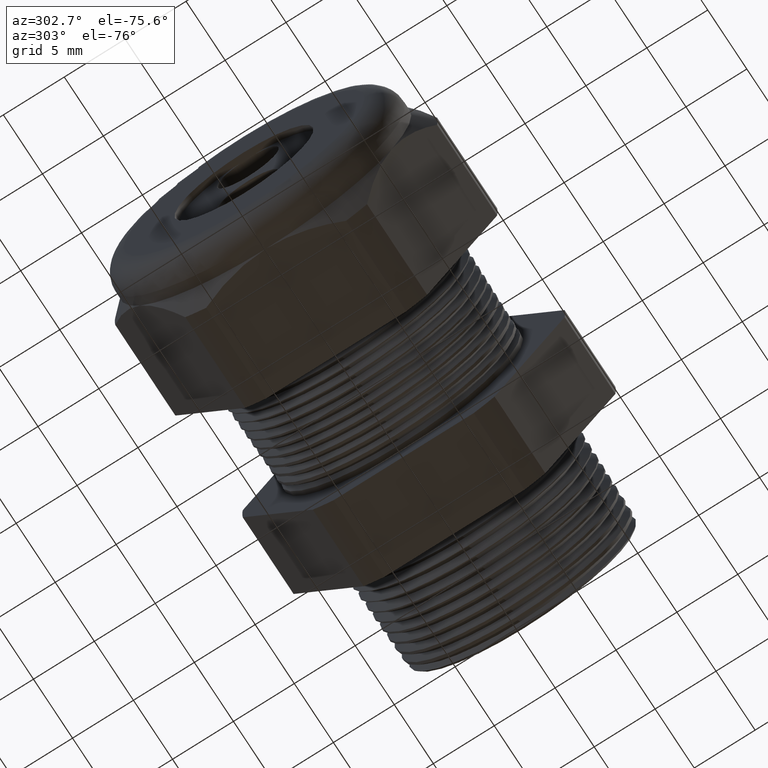
[diagram: clean part render]
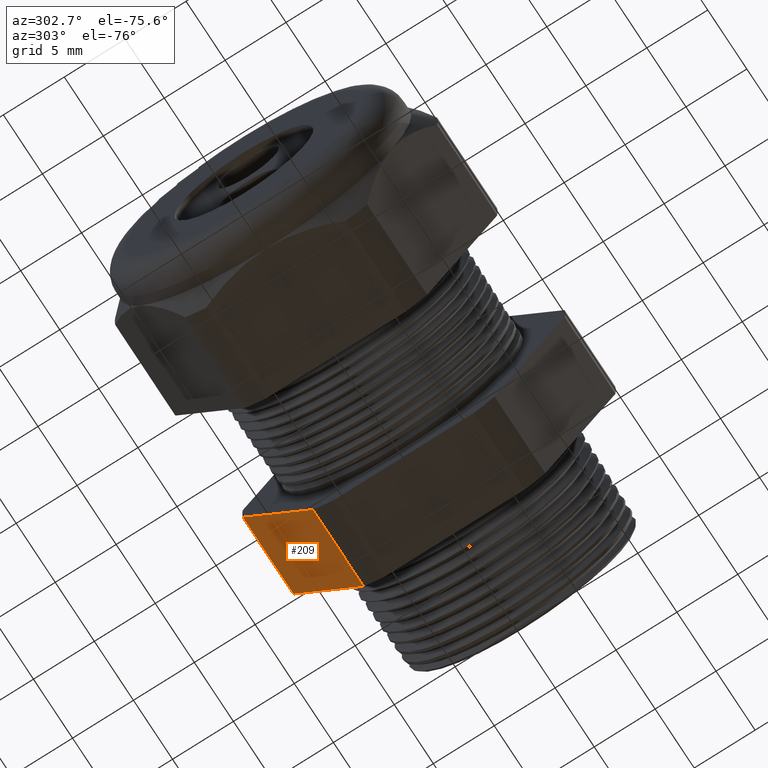
[diagram: same view with one face highlighted and labeled with its STEP entity id]
A machine part, auxiliary view. The second image highlights one B-rep face of the part: STEP entity #209.
In plain terms, the highlighted planar face has unit normal (0, 0.866, -0.5).
Its self-contained STEP definition (entity closure, byte-faithful):
#184 = EDGE_CURVE ( 'NONE', #4844, #424, #1477, .T. ) ;
#188 = EDGE_LOOP ( 'NONE', ( #189, #194, #190, #191 ) ) ;
#189 = ORIENTED_EDGE ( 'NONE', *, *, #184, .T. ) ;
#190 = ORIENTED_EDGE ( 'NONE', *, *, #308, .F. ) ;
#191 = ORIENTED_EDGE ( 'NONE', *, *, #4846, .F. ) ;
#194 = ORIENTED_EDGE ( 'NONE', *, *, #420, .F. ) ;
#209 = ADVANCED_FACE ( 'NONE', ( #1510 ), #1509, .T. ) ;
#308 = EDGE_CURVE ( 'NONE', #4845, #415, #1641, .T. ) ;
#415 = VERTEX_POINT ( 'NONE', #1848 ) ;
#420 = EDGE_CURVE ( 'NONE', #415, #424, #1841, .T. ) ;
#424 = VERTEX_POINT ( 'NONE', #1832 ) ;
#1474 = DIRECTION ( 'NONE',  ( -1.000000000000000000, 0.0000000000000000000, 0.0000000000000000000 ) ) ;
#1475 = VECTOR ( 'NONE', #1474, 39.37007874015748100 ) ;
#1476 = CARTESIAN_POINT ( 'NONE',  ( 0.03999999999999984800, 0.2938165587564948700, -0.4310947921287048800 ) ) ;
#1477 = LINE ( 'NONE', #1476, #1475 ) ;
#1505 = DIRECTION ( 'NONE',  ( 0.0000000000000000000, 0.4999999999999998300, 0.8660254037844388200 ) ) ;
#1506 = DIRECTION ( 'NONE',  ( 0.0000000000000000000, 0.8660254037844388200, -0.4999999999999998300 ) ) ;
#1507 = CARTESIAN_POINT ( 'NONE',  ( 0.03999999999999984800, 0.5202473208008777700, -0.03890520787129496400 ) ) ;
#1508 = AXIS2_PLACEMENT_3D ( 'NONE', #1507, #1506, #1505 ) ;
#1509 = PLANE ( 'NONE',  #1508 ) ;
#1510 = FACE_OUTER_BOUND ( 'NONE', #188, .T. ) ;
#1638 = DIRECTION ( 'NONE',  ( -1.000000000000000000, 0.0000000000000000000, 0.0000000000000000000 ) ) ;
#1639 = VECTOR ( 'NONE', #1638, 39.37007874015748100 ) ;
#1640 = CARTESIAN_POINT ( 'NONE',  ( 0.03999999999999984800, 0.5202473208008777700, -0.03890520787129496400 ) ) ;
#1641 = LINE ( 'NONE', #1640, #1639 ) ;
#1832 = CARTESIAN_POINT ( 'NONE',  ( -0.5659055118110235500, 0.2938165587564948700, -0.4310947921287048300 ) ) ;
#1838 = DIRECTION ( 'NONE',  ( 0.0000000000000000000, -0.4999999999999998300, -0.8660254037844388200 ) ) ;
#1839 = VECTOR ( 'NONE', #1838, 39.37007874015748100 ) ;
#1840 = CARTESIAN_POINT ( 'NONE',  ( -0.5659055118110235500, 0.6420319397786861100, 0.1720319397786860800 ) ) ;
#1841 = LINE ( 'NONE', #1840, #1839 ) ;
#1848 = CARTESIAN_POINT ( 'NONE',  ( -0.5659055118110235500, 0.5202473208008777700, -0.03890520787129496400 ) ) ;
#4193 = DIRECTION ( 'NONE',  ( 0.0000000000000000000, 0.4999999999999998300, 0.8660254037844388200 ) ) ;
#4194 = VECTOR ( 'NONE', #4193, 39.37007874015748100 ) ;
#4195 = CARTESIAN_POINT ( 'NONE',  ( -0.3100000000000000000, 0.6420319397786861100, 0.1720319397786860800 ) ) ;
#4196 = LINE ( 'NONE', #4195, #4194 ) ;
#4197 = CARTESIAN_POINT ( 'NONE',  ( -0.3100000000000000000, 0.5202473208008777700, -0.03890520787129494300 ) ) ;
#4198 = CARTESIAN_POINT ( 'NONE',  ( -0.3100000000000000000, 0.2938165587564948700, -0.4310947921287048800 ) ) ;
#4844 = VERTEX_POINT ( 'NONE', #4198 ) ;
#4845 = VERTEX_POINT ( 'NONE', #4197 ) ;
#4846 = EDGE_CURVE ( 'NONE', #4844, #4845, #4196, .T. ) ;